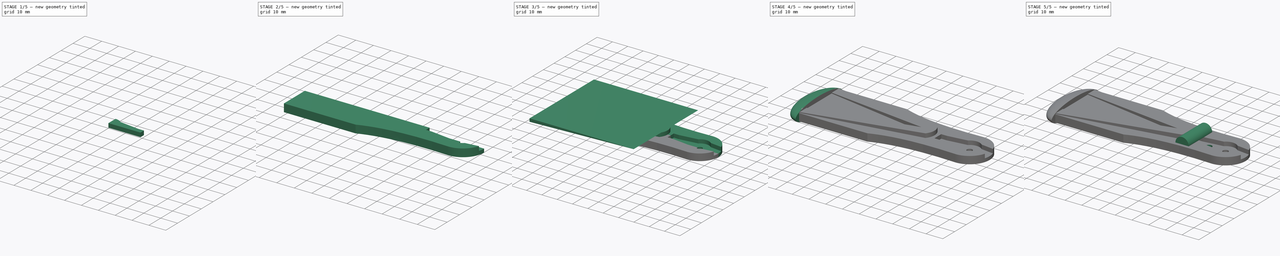
[diagram: build sequence overview — one tinted view per stage of 5, left to right]
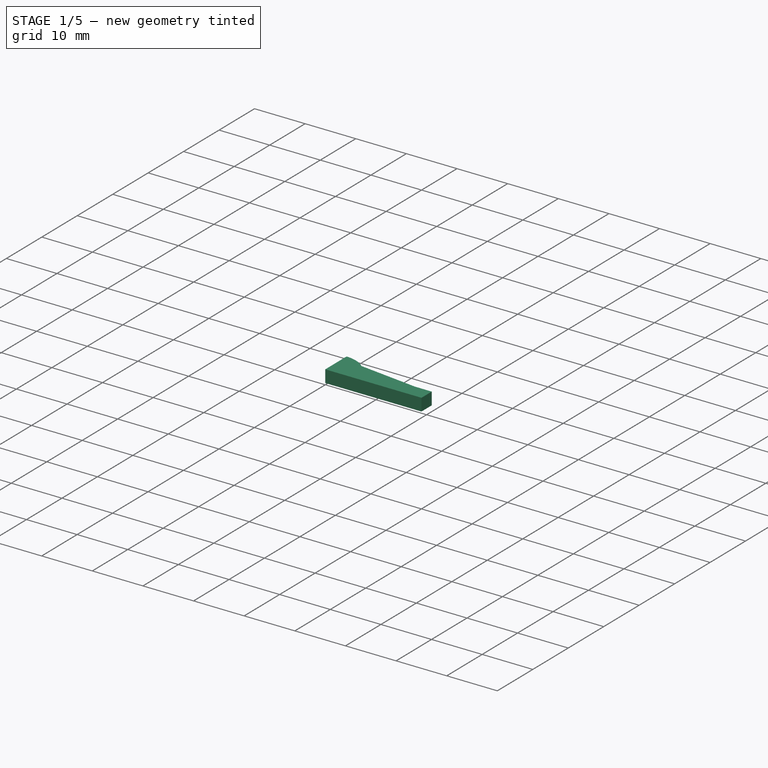
[diagram: stage 1 of 5 — iso view after this stage's code; geometry added in this stage tinted green]
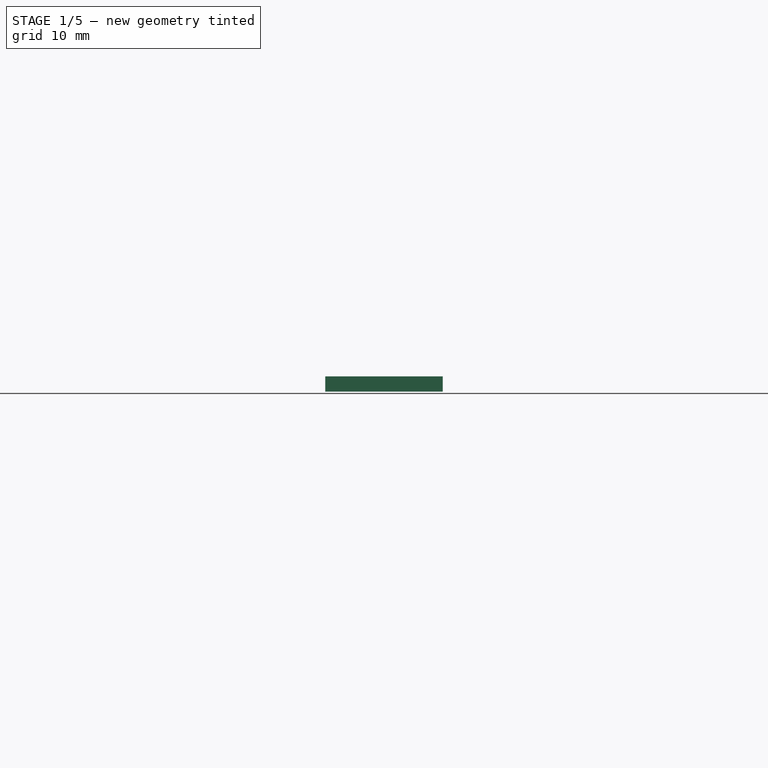
[diagram: stage 1 of 5 — front view after this stage's code; geometry added in this stage tinted green]
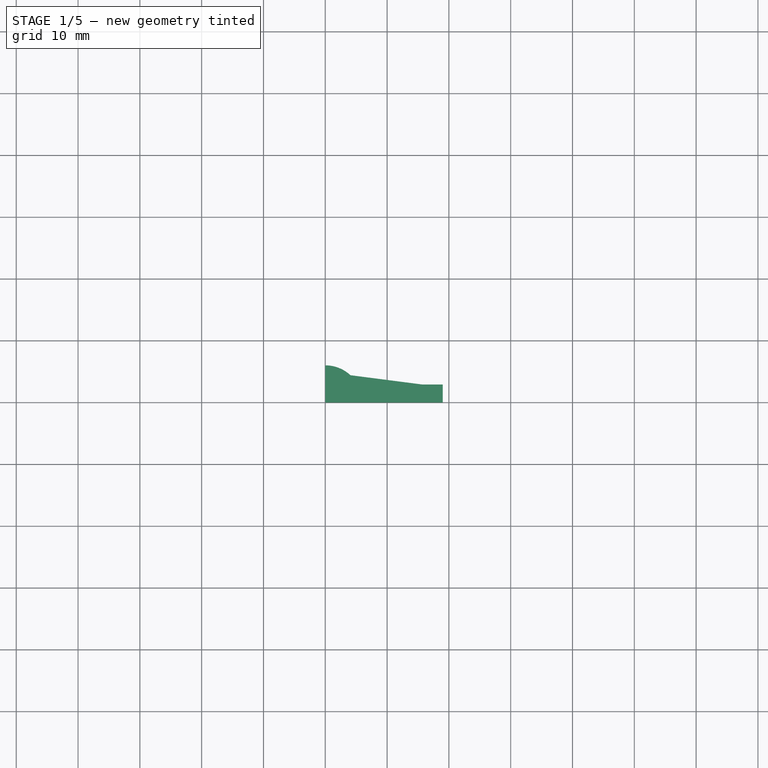
[diagram: stage 1 of 5 — top view after this stage's code; geometry added in this stage tinted green]
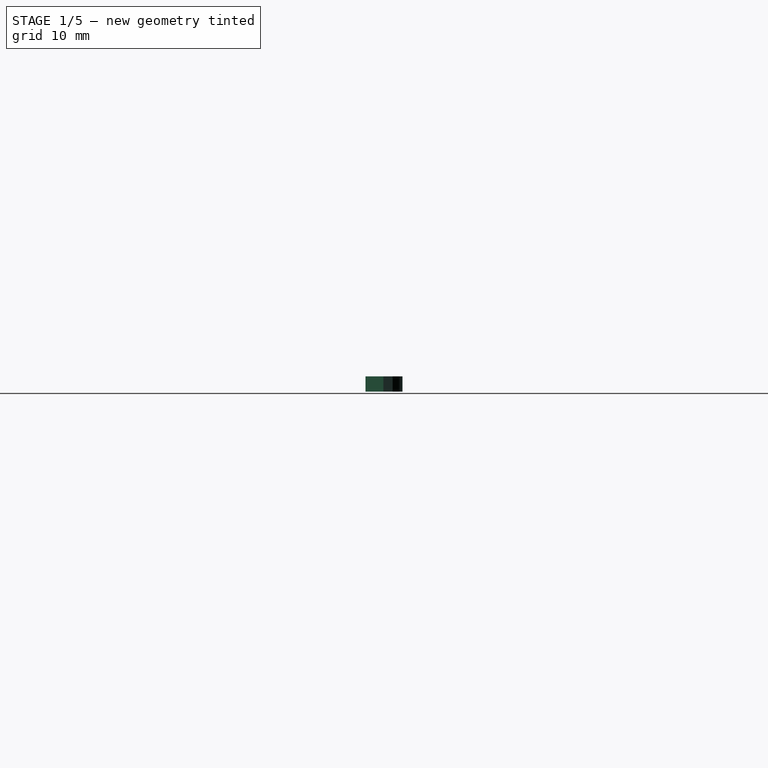
[diagram: stage 1 of 5 — right view after this stage's code; geometry added in this stage tinted green]
FCSTD DOCUMENT  (FreeCAD 0.18R16093 (Git))
Label: ServoHolder-3
License: All rights reserved
LicenseURL: http://en.wikipedia.org/wiki/All_rights_reserved
objects: Sketcher::SketchObject×6, TechDraw::DrawViewDimension×5, Part::Extrusion×4, Part::MultiFuse×3, TechDraw::DrawViewPart×3, Part::Mirroring×2, Part::Cut×2, Spreadsheet::Sheet×1, Part::Fuse×1, TechDraw::DrawSVGTemplate×1, TechDraw::DrawViewAnnotation×1, TechDraw::DrawPage×1, Part::Ellipsoid×1, PartDesign::FeatureBase×1, PartDesign::Pad×1, PartDesign::Pocket×1, PartDesign::Body×1
note: 25 computed .brp shape members not serialized (recipe doc carries the construction recipe); baked Part::Feature solids carry a one-line shape summary decoded from their .brp

FEATURE [Sketcher::SketchObject] Sketch001
  sketch-geometry (15):
    g0: GeomPoint X=-90 Y=17 Z=0
    g1: LineSegment StartX=-90 StartY=17 StartZ=0 EndX=-49.2057 EndY=17 EndZ=0
    g2: Circle [constr] CenterX=0 CenterY=12 CenterZ=0 NormalX=0 NormalY=0 NormalZ=1 AngleXU=0 Radius=6
    g3: Circle [constr] CenterX=-49.2057 CenterY=17 CenterZ=0 NormalX=0 NormalY=0 NormalZ=1 AngleXU=0 Radius=6
    g4: ArcOfCircle CenterX=0 CenterY=0 CenterZ=0 NormalX=0 NormalY=0 NormalZ=1 AngleXU=0 Radius=12 StartAngle=0 EndAngle=1.5708
    g5: ArcOfCircle CenterX=0 CenterY=0 CenterZ=0 NormalX=0 NormalY=0 NormalZ=1 AngleXU=0 Radius=1.6 StartAngle=0 EndAngle=3.14159
    g6: LineSegment StartX=1.6 StartY=0 StartZ=0 EndX=12 EndY=0 EndZ=0
    g7: LineSegment StartX=-1.6 StartY=0 StartZ=0 EndX=-90 EndY=0 EndZ=0
    g8: Circle [constr] CenterX=0 CenterY=12 CenterZ=0 NormalX=0 NormalY=0 NormalZ=1 AngleXU=0 Radius=5
    g9: Circle [constr] CenterX=-32.5091 CenterY=10.4213 CenterZ=0 NormalX=0 NormalY=0 NormalZ=1 AngleXU=0 Radius=5
    g10: Circle [constr] CenterX=-49.2057 CenterY=17 CenterZ=0 NormalX=0 NormalY=0 NormalZ=1 AngleXU=0 Radius=5
    g11: BSplineCurve PolesCount=3 KnotsCount=2 Degree=2 IsPeriodic=0
    g12: GeomPoint [constr] X=0 Y=12 Z=0
    g13: GeomPoint [constr] X=-49.2057 Y=17 Z=0
    g14: LineSegment StartX=-90 StartY=0 StartZ=0 EndX=-90 EndY=17 EndZ=0
  constraints (28):
    c: DistanceX(g0,g2) = 90  'length'
    c: DistanceY(g2,g0) = 5
    c: Coincident(g1,g0)
    c: Horizontal(g1)
    c: Radius(g2) = 6
    c: Equal(g2,g3)
    c: Coincident(g3,g1)
    c: PointOnObject(g4,g-1)
    c: PointOnObject(g7,g-1)
    c: Coincident(g5,g-1)
    c: PointOnObject(g5,g-1)
    c: Coincident(g6,g5)
    c: Coincident(g6,g4)
    c: Horizontal(g6)
    c: Coincident(g7,g5)
    c: Radius(g5) = 1.6
    c: Radius(g8) = 5
    c: Equal(g8,g9)
    c: Equal(g8,g10)
    c: Coincident(g10,g1)
    c: InternalAlignment(g8,g11)
    c: InternalAlignment(g9,g11)
    c: InternalAlignment(g10,g11)
    c: InternalAlignment(g12,g11)
    c: InternalAlignment(g13,g11)
    c: Coincident(g14,g0)
    c: Coincident(g14,g7)
    c: Coincident(g8,g2)
FEATURE [Part::Extrusion] Extrude  label="arm"
  Base = -> Sketch001
  Dir = (0,0,1)
  DirMode = 2
  FaceMakerClass = Part::FaceMakerBullseye
  LengthFwd = 4.5
  LengthRev = 0
  Solid = true
  Symmetric = false
  expr: LengthFwd = global.height
FEATURE [Sketcher::SketchObject] Sketch008  label="servoHolderHole"
  AttachmentOffset = pos=(0,0,0) rot=(0,0,1;1.5708rad)
  MapMode = 5
  Placement = pos=(0,0,4.5) rot=(0,0,1;1.5708rad)
  Support = -> [Extrude]
  sketch-geometry (7):
    g0: GeomPoint X=0 Y=19 Z=0
    g1: LineSegment StartX=0 StartY=19 StartZ=0 EndX=2.9 EndY=19 EndZ=0
    g2: LineSegment StartX=2.9 StartY=19 StartZ=0 EndX=2.9 EndY=15.6827 EndZ=0
    g3: ArcOfCircle CenterX=0 CenterY=0 CenterZ=0 NormalX=0 NormalY=0 NormalZ=1 AngleXU=0 Radius=6 StartAngle=0 EndAngle=0.747584
    g4: LineSegment StartX=4.4 StartY=4.07922 StartZ=0 EndX=2.9 EndY=15.6827 EndZ=0
    g5: LineSegment StartX=0 StartY=0 StartZ=0 EndX=6 EndY=0 EndZ=0
    g6: LineSegment StartX=0 StartY=0 StartZ=0 EndX=0 EndY=19 EndZ=0
  constraints (18):
    c: PointOnObject(g0,g-2)
    c: DistanceY(g-1,g0) = 19  'servHoleL'
    c: Coincident(g1,g0)
    c: Horizontal(g1)
    c: DistanceX(g1,g1) = 2.9
    c: Coincident(g2,g1)
    c: Vertical(g2)
    c: Coincident(g3,g-1)
    c: Radius(g3) = 6
    c: PointOnObject(g3,g-1)
    c: DistanceX(g-1,g3) = 4.4
    c: Coincident(g4,g2)
    c: Distance(g4) = 11.7
    c: Coincident(g4,g3)
    c: Coincident(g5,g-1)
    c: Coincident(g5,g3)
    c: Coincident(g6,g-1)
    c: Coincident(g6,g0)
FEATURE [Spreadsheet::Sheet] Spreadsheet  label="global"
  cells = A1=height; B1(height)=4.5; A2=offsetBackwardServo; B2(offestSev)=-2.5
FEATURE [Part::Extrusion] Extrude004
  Base = -> Sketch008
  Dir = (0,0,1)
  DirMode = 2
  FaceMakerClass = Part::FaceMakerBullseye
  LengthFwd = 2.45
  LengthRev = 0
  Reversed = true
  Solid = true
  Symmetric = false
FEATURE [Part::Mirroring] Part__Mirroring002  label="Extrude004 (Mirror #3)"
  Base = (0,0,0)
  Normal = (1,0,0)
  Source = -> Extrude004
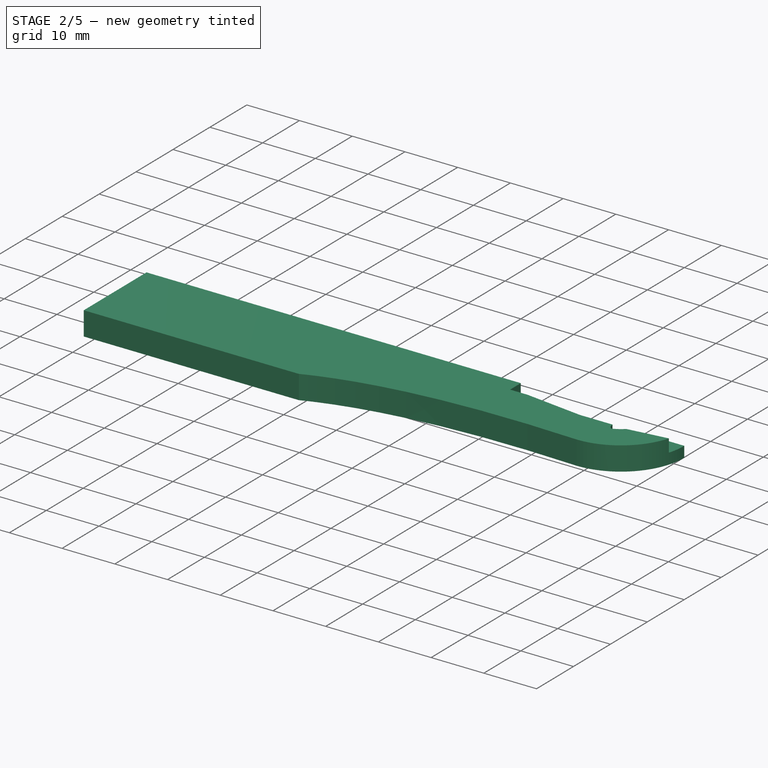
[diagram: stage 2 of 5 — iso view after this stage's code; geometry added in this stage tinted green]
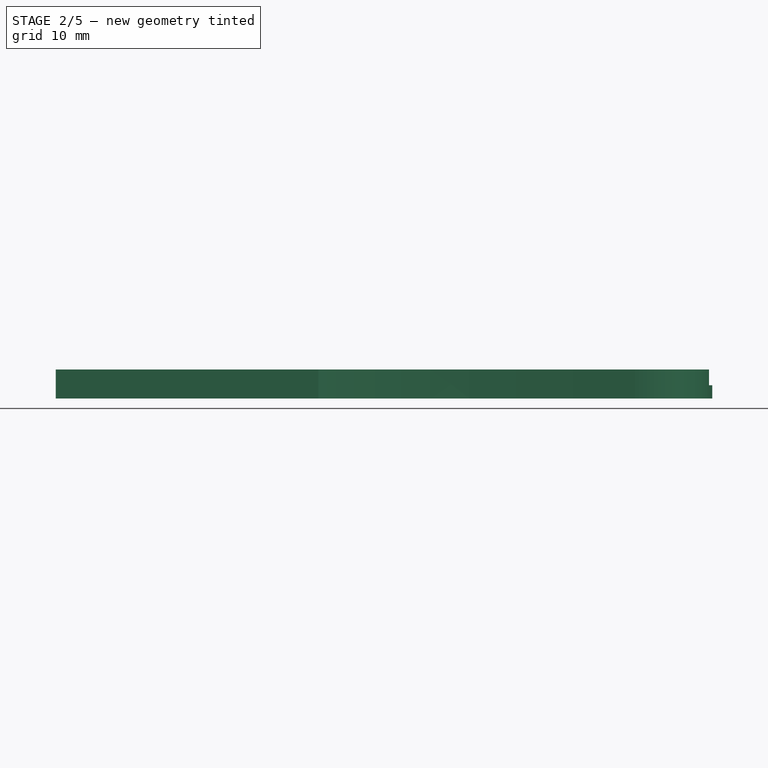
[diagram: stage 2 of 5 — front view after this stage's code; geometry added in this stage tinted green]
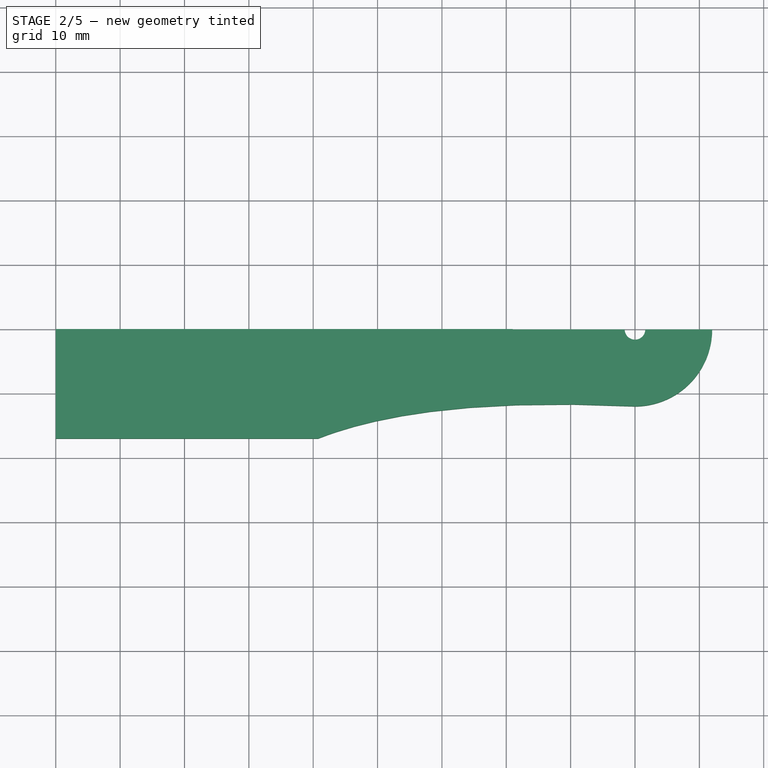
[diagram: stage 2 of 5 — top view after this stage's code; geometry added in this stage tinted green]
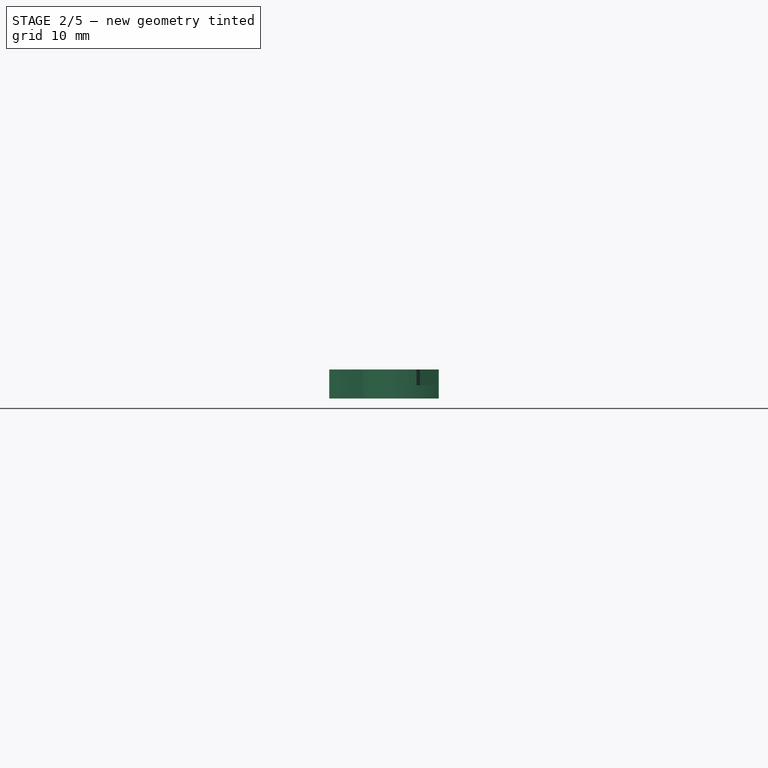
[diagram: stage 2 of 5 — right view after this stage's code; geometry added in this stage tinted green]
FEATURE [Part::MultiFuse] Fusion003
  Shapes = -> [Part__Mirroring002,Extrude004]
FEATURE [Part::Cut] Cut
  Base = -> Extrude
  Tool = -> Fusion003
FEATURE [Part::Mirroring] Part__Mirroring  label="Extrude (Mirror #1)"
  Base = (0,0,0)
  Normal = (0,1,0)
  Source = -> Cut
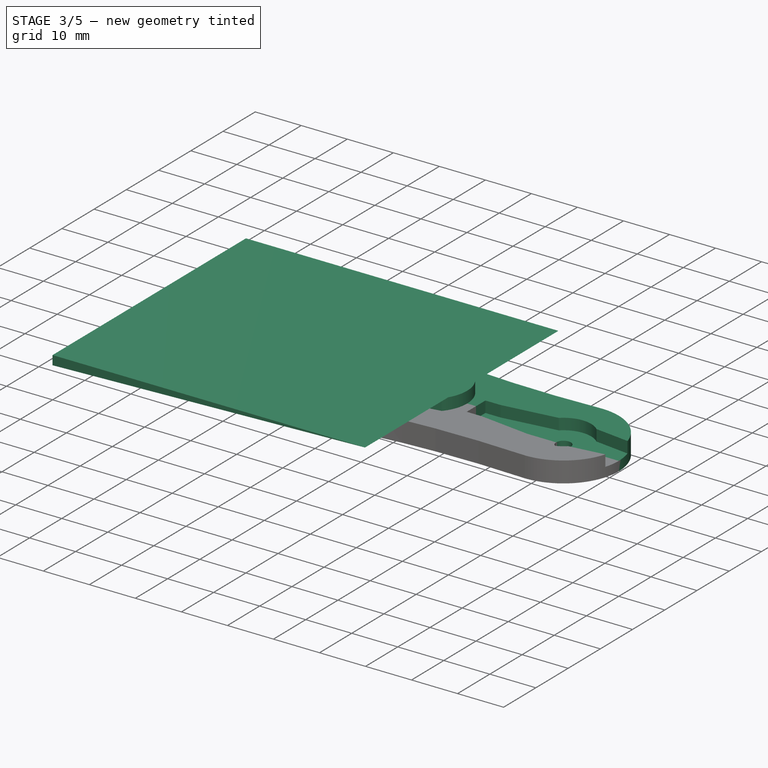
[diagram: stage 3 of 5 — iso view after this stage's code; geometry added in this stage tinted green]
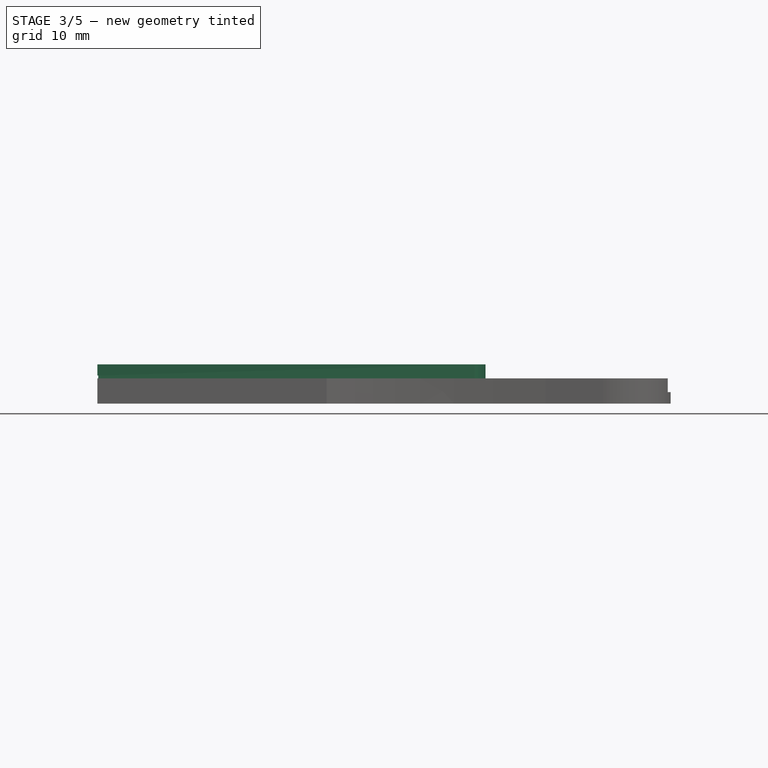
[diagram: stage 3 of 5 — front view after this stage's code; geometry added in this stage tinted green]
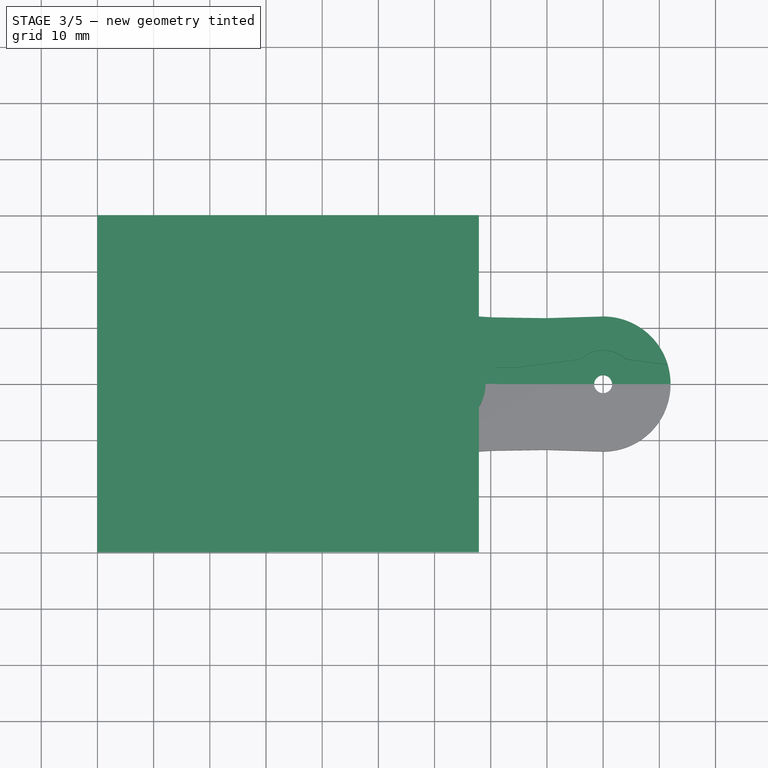
[diagram: stage 3 of 5 — top view after this stage's code; geometry added in this stage tinted green]
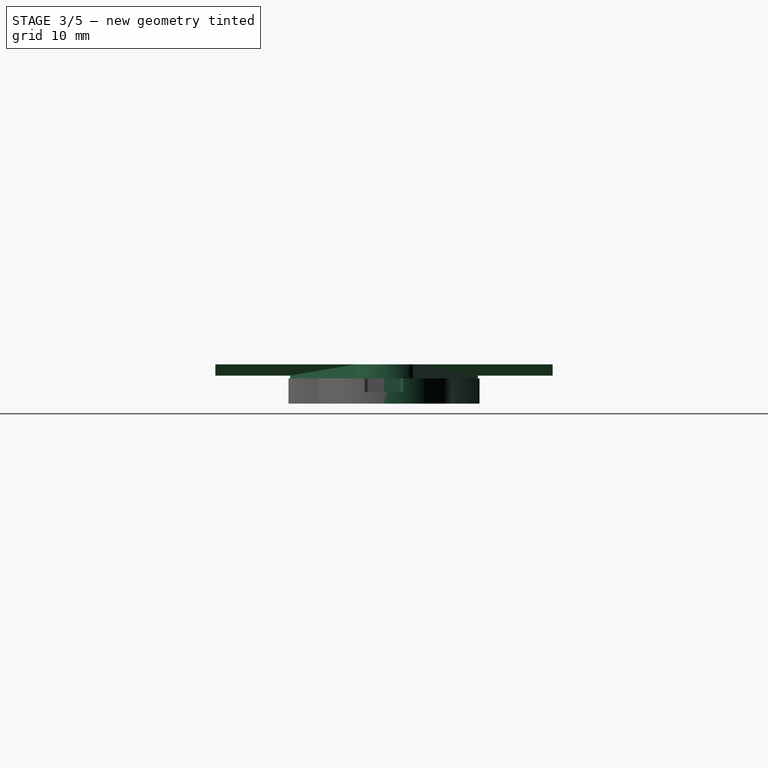
[diagram: stage 3 of 5 — right view after this stage's code; geometry added in this stage tinted green]
FEATURE [Sketcher::SketchObject] Sketch012
  MapMode = 5
  Placement = pos=(0,0,4) rot=(0,0,1;0rad)
  sketch-geometry (9):
    g0: LineSegment StartX=-89.8501 StartY=16.7026 StartZ=0 EndX=-22.8408 EndY=5.14242 EndZ=0
    g1: LineSegment StartX=-22.8408 StartY=-5.14242 StartZ=0 EndX=-89.8501 EndY=-16.7026 EndZ=0
    g2: LineSegment StartX=-89.8501 StartY=-16.7026 StartZ=0 EndX=-89.8501 EndY=-10.7026 EndZ=0
    g3: LineSegment StartX=-89.8501 StartY=-10.7026 StartZ=0 EndX=-28.8408 EndY=0 EndZ=0
    g4: LineSegment StartX=-28.8408 StartY=0 StartZ=0 EndX=-89.8501 EndY=10.7026 EndZ=0
    g5: LineSegment StartX=-89.8501 StartY=10.7026 StartZ=0 EndX=-89.8501 EndY=16.7026 EndZ=0
    g6: ArcOfCircle CenterX=-28.8408 CenterY=0 CenterZ=0 NormalX=0 NormalY=0 NormalZ=1 AngleXU=0 Radius=7.90218 StartAngle=5.5746 EndAngle=6.99177
    g7: LineSegment [constr] StartX=-89.8501 StartY=10.7026 StartZ=0 EndX=-89.8501 EndY=0 EndZ=0
    g8: LineSegment [constr] StartX=-89.8501 StartY=0 StartZ=0 EndX=-89.8501 EndY=-10.7026 EndZ=0
  constraints (22):
    c: Coincident(g2,g1)
    c: Vertical(g2)
    c: Coincident(g3,g2)
    c: PointOnObject(g3,g-1)
    c: Coincident(g4,g3)
    c: Coincident(g5,g4)
    c: Coincident(g5,g0)
    c: Vertical(g5)
    c: DistanceY(g2,g2) = 6
    c: DistanceY(g5,g5) = 6
    c: Coincident(g6,g3)
    c: Coincident(g6,g0)
    c: Coincident(g6,g1)
    c: DistanceX(g3,g0) = 6
    c: DistanceX(g3,g1) = 6
    c: Coincident(g7,g4)
    c: PointOnObject(g7,g-1)
    c: Coincident(g8,g7)
    c: Coincident(g8,g2)
    c: Vertical(g7)
    c: Vertical(g8)
    c: Equal(g7,g8)
FEATURE [Sketcher::SketchObject] Sketch013
  MapMode = 5
  Placement = pos=(0,0,0) rot=(1,0,0;1.5708rad)
  sketch-geometry (3):
    g0: LineSegment StartX=-90 StartY=5 StartZ=0 EndX=-22.1184 EndY=7 EndZ=0
    g1: LineSegment StartX=-22.1184 StartY=7 StartZ=0 EndX=-90 EndY=7 EndZ=0
    g2: LineSegment StartX=-90 StartY=7 StartZ=0 EndX=-90 EndY=5 EndZ=0
  constraints (8):
    c: Coincident(g1,g0)
    c: Horizontal(g1)
    c: Coincident(g2,g1)
    c: Coincident(g2,g0)
    c: Vertical(g2)
    c: DistanceX(g0,g-1) = 90
    c: DistanceY(g-1,g0) = 7
    c: DistanceY(g0,g1) = 2
FEATURE [Part::Extrusion] Extrude005
  Base = -> Sketch012
  Dir = (0,0,1)
  DirMode = 2
  FaceMakerClass = Part::FaceMakerBullseye
  LengthFwd = 3
  LengthRev = 0
  Solid = true
  Symmetric = false
FEATURE [Part::Extrusion] Extrude006
  Base = -> Sketch013
  Dir = (0,-1,0)
  DirMode = 2
  FaceMakerClass = Part::FaceMakerBullseye
  LengthFwd = 30
  LengthRev = 30
  Solid = true
  Symmetric = false
FEATURE [Part::Fuse] Fusion
  Base = -> Cut
  Tool = -> Part__Mirroring
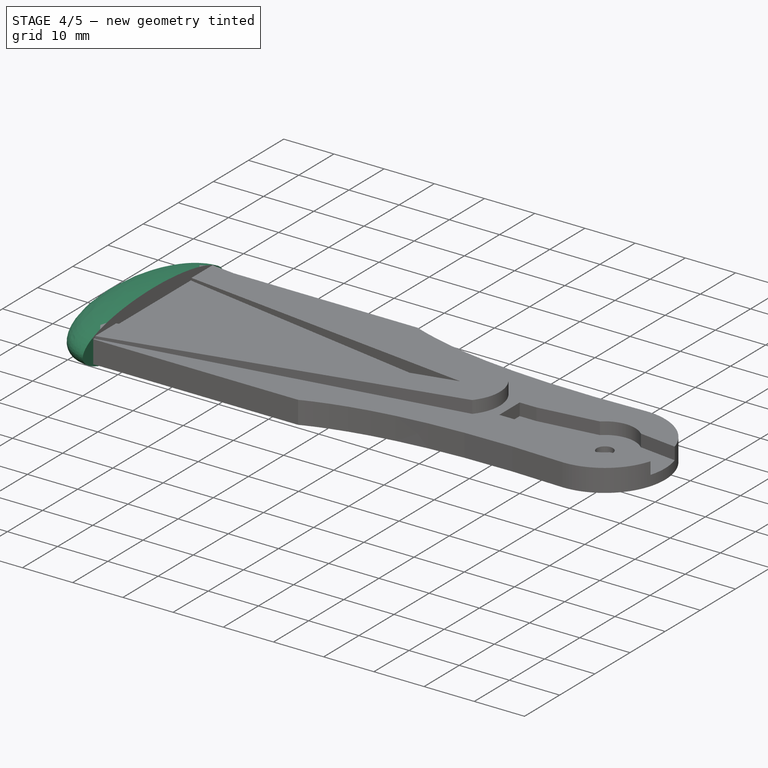
[diagram: stage 4 of 5 — iso view after this stage's code; geometry added in this stage tinted green]
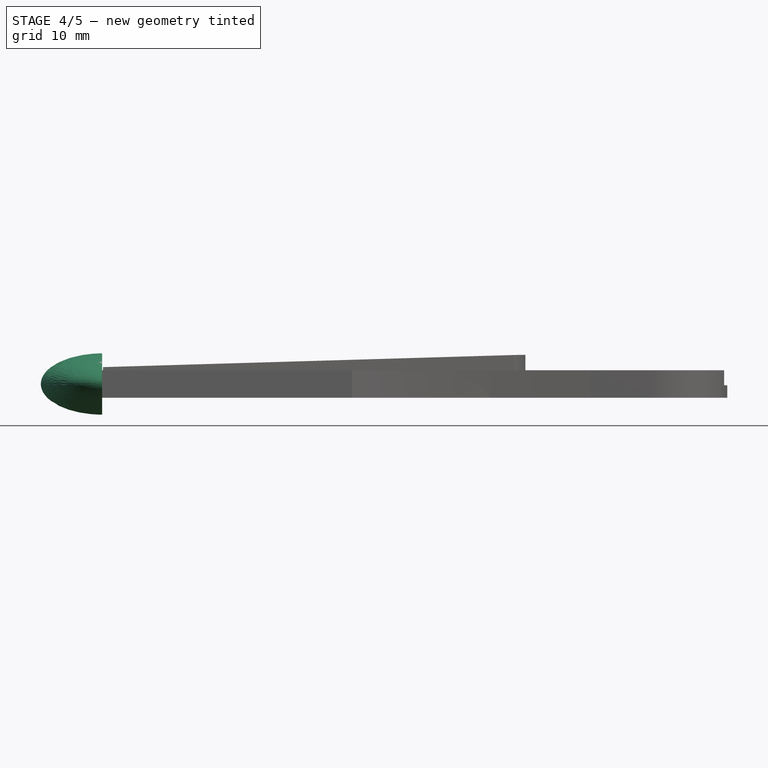
[diagram: stage 4 of 5 — front view after this stage's code; geometry added in this stage tinted green]
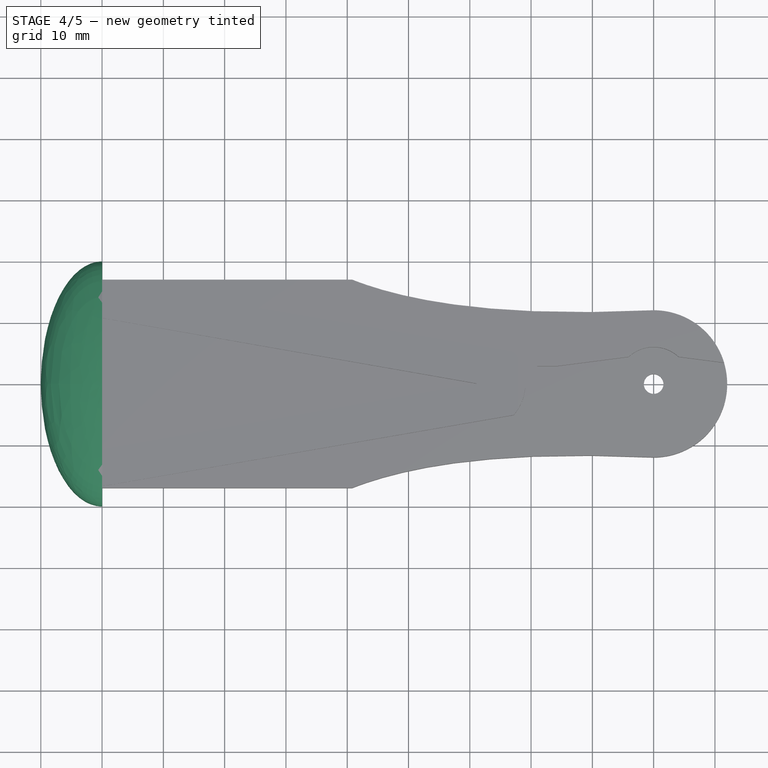
[diagram: stage 4 of 5 — top view after this stage's code; geometry added in this stage tinted green]
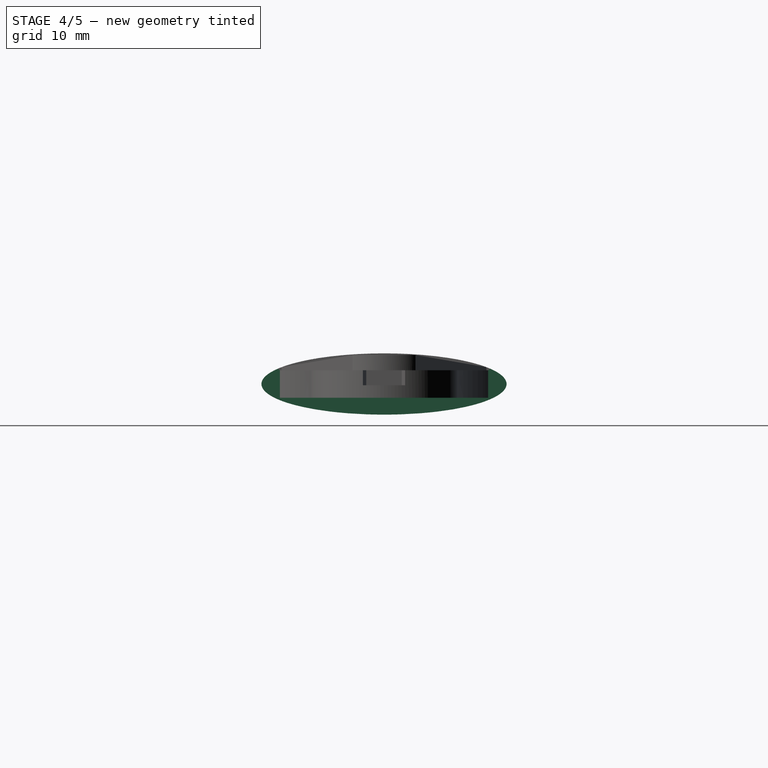
[diagram: stage 4 of 5 — right view after this stage's code; geometry added in this stage tinted green]
FEATURE [Part::Cut] Cut001  label="Strebe"
  Base = -> Extrude005
  Tool = -> Extrude006
FEATURE [TechDraw::DrawSVGTemplate] Template
  EditableTexts = Designed_by_Name=Johannes Löwe; Drawing_number=0.0.1; FC-Date=24/03/2019; FC-SC=-; FC-SH=1; FC-Title=S.L.A.R Leg; Subtitle=Middle Component; Weight=19.5 g
  Height = 210
  Orientation = 1
  Width = 297
FEATURE [TechDraw::DrawViewPart] View  label="Top"
  Caption = Top
  CoarseView = true
  Direction = (0,0,1)
  Focus = 100
  HardHidden = false
  IsoCount = 0
  IsoHidden = false
  IsoVisible = true
  LockPosition = false
  Perspective = false
  Rotation = 0
  ScaleType = 1
  SeamHidden = false
  SeamVisible = false
  SmoothHidden = false
  SmoothVisible = true
  X = 133.52
  Y = 56.71
FEATURE [TechDraw::DrawViewPart] View001  label="Front"
  Caption = Front
  CoarseView = true
  Direction = (0,1,0)
  Focus = 100
  HardHidden = false
  IsoCount = 0
  IsoHidden = false
  IsoVisible = false
  LockPosition = false
  Perspective = true
  Rotation = 0
  ScaleType = 0
  SeamHidden = false
  SeamVisible = false
  SmoothHidden = false
  SmoothVisible = false
  X = 216.314
  Y = 87.8478
FEATURE [TechDraw::DrawViewPart] View002  label="Perspective"
  Caption = The S.L.A.R. Leg
  CoarseView = true
  Direction = (-0.2,1,1)
  Focus = 200
  HardHidden = false
  IsoCount = 0
  IsoHidden = false
  IsoVisible = true
  LockPosition = false
  Perspective = false
  Rotation = 0
  Scale = 1.5
  ScaleType = 0
  SeamHidden = false
  SeamVisible = false
  SmoothHidden = true
  SmoothVisible = false
  X = 69.0301
  Y = 169.689
  expr: Direction.x = -0.2
FEATURE [TechDraw::DrawViewDimension] Dimension
  Arbitrary = false
  FormatSpec = %.2f
  LockPosition = false
  MeasureType = 1
  OverTolerance = 0
  References2D = -> [View]
  Rotation = 0
  ScaleType = 0
  Type = 2
  UnderTolerance = 0
  X = -113.183
  Y = -28.0041
FEATURE [TechDraw::DrawViewDimension] Dimension001
  Arbitrary = false
  FormatSpec = %.2f
  LockPosition = false
  MeasureType = 1
  OverTolerance = 0
  References2D = -> [View001]
  Rotation = 0
  ScaleType = 0
  Type = 1
  UnderTolerance = 0
  X = 31.1719
  Y = 20.5356
FEATURE [TechDraw::DrawViewDimension] Dimension002
  Arbitrary = false
  FormatSpec = %.2f
  LockPosition = false
  MeasureType = 1
  OverTolerance = 0
  References2D = -> [View]
  Rotation = 0
  ScaleType = 0
  Type = 2
  UnderTolerance = 0
  X = -69.0862
  Y = -0.822454
FEATURE [TechDraw::DrawViewDimension] Dimension003
  Arbitrary = false
  FormatSpec = %.2f
  LockPosition = false
  MeasureType = 1
  OverTolerance = 0
  References2D = -> [View]
  Rotation = 0
  ScaleType = 0
  Type = 2
  UnderTolerance = 0
  X = -91.294
  Y = -1.64851
FEATURE [TechDraw::DrawViewDimension] Dimension004
  Arbitrary = false
  FormatSpec = %.2f
  LockPosition = false
  MeasureType = 1
  OverTolerance = 0
  References2D = -> [View002]
  Rotation = 0
  ScaleType = 0
  Type = 0
  UnderTolerance = 0
  X = 1.50159
  Y = -39.0413
FEATURE [TechDraw::DrawViewAnnotation] Annotation
  Font = osifont
  LineSpace = 80
  LockPosition = false
  MaxWidth = -1
  Rotation = 0
  ScaleType = 0
  Text = Radboud University
  TextSize = 5
  TextStyle = 2
  X = 214.014
  Y = 35.8125
FEATURE [TechDraw::DrawPage] Page
  KeepUpdated = true
  ProjectionType = 0
  Template = -> Template
  Views = -> [View,View001,View002,Dimension,Dimension001,Dimension002,Dimension003,Dimension004,Annotation]
FEATURE [Part::MultiFuse] Fusion004
  Shapes = -> [Cut001,Fusion]
FEATURE [Sketcher::SketchObject] Sketch015  label="HoleServoScrew2"
  MapMode = 5
  Placement = pos=(0,0,4) rot=(0,0,1;0rad)
  sketch-geometry (1):
    g0: Circle CenterX=-10 CenterY=0 CenterZ=0 NormalX=0 NormalY=0 NormalZ=1 AngleXU=0 Radius=1.8
  constraints (3):
    c: PointOnObject(g0,g-1)
    c: DistanceX(g0,g-1) = 10
    c: Radius(g0) = 1.8
FEATURE [Part::Ellipsoid] Ellipsoid
  Angle1 = -90
  Angle2 = 90
  Angle3 = 180
  AttacherType = Attacher::AttachEngine3D
  Placement = pos=(-90,0,2.25) rot=(0,0,1;1.5708rad)
  Radius1 = 5
  Radius2 = 20
  Radius3 = 10
  expr: Placement.Base.z = global.height / 2
  expr: Placement.Base.x = -1 * Sketch001.Constraints.length
FEATURE [Part::MultiFuse] Fusion005
  Shapes = -> [Ellipsoid,Fusion004]
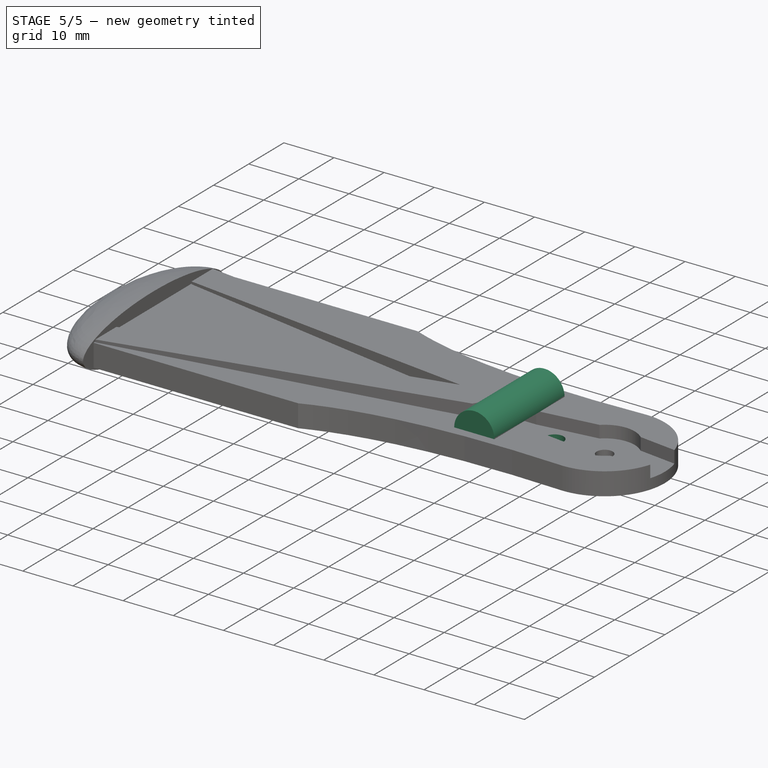
[diagram: stage 5 of 5 — iso view after this stage's code; geometry added in this stage tinted green]
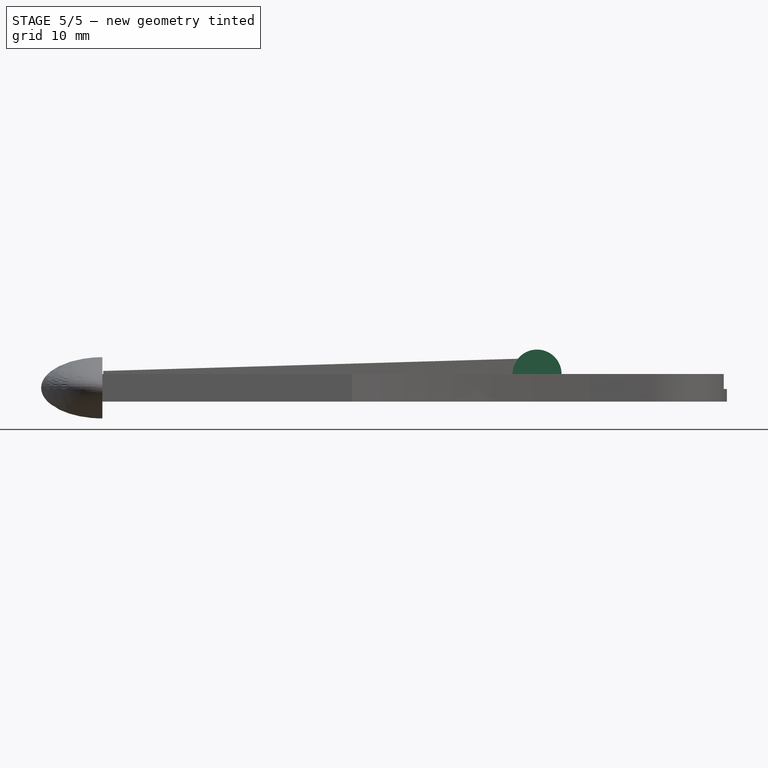
[diagram: stage 5 of 5 — front view after this stage's code; geometry added in this stage tinted green]
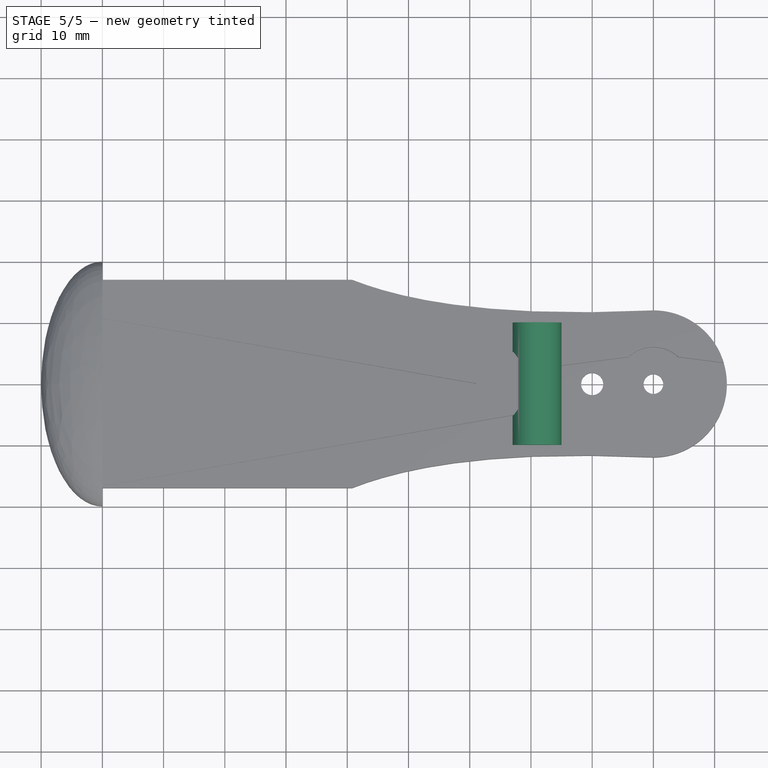
[diagram: stage 5 of 5 — top view after this stage's code; geometry added in this stage tinted green]
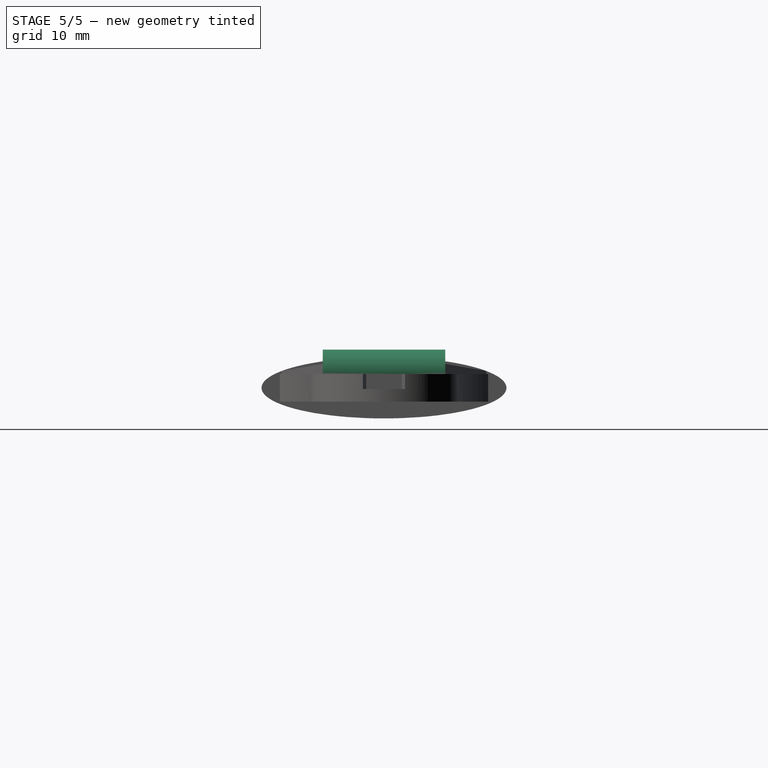
[diagram: stage 5 of 5 — right view after this stage's code; geometry added in this stage tinted green]
FEATURE [PartDesign::FeatureBase] BaseFeature
  BaseFeature = -> Fusion005
FEATURE [Sketcher::SketchObject] Sketch  label="shoe"
  Placement = pos=(0,0,0) rot=(1,0,0;1.5708rad)
  expr: Constraints[4] = arm.LengthFwd
  expr: Constraints[6] = servoHolderHole.Constraints.servHoleL
  sketch-geometry (2):
    g0: ArcOfCircle CenterX=-19 CenterY=4.5 CenterZ=0 NormalX=0 NormalY=0 NormalZ=1 AngleXU=0 Radius=4 StartAngle=0 EndAngle=3.14159
    g1: LineSegment StartX=-23 StartY=4.5 StartZ=0 EndX=-15 EndY=4.5 EndZ=0
  constraints (7):
    c: Radius(g0) = 4
    c: Coincident(g1,g0)
    c: Coincident(g1,g0)
    c: Horizontal(g1)
    c: DistanceY(g-1,g0) = 4.5
    c: PointOnObject(g0,g1)
    c: DistanceX(g0,g-1) = 19
FEATURE [PartDesign::Pad] Pad
  BaseFeature = -> BaseFeature
  Length = 10
  Length2 = 10
  Profile = -> Sketch
  Reversed = true
  Type = 4
FEATURE [PartDesign::Pocket] Pocket
  BaseFeature = -> Pad
  Length = 28
  Length2 = 100
  Midplane = true
  Profile = -> Sketch015
  Type = 0
FEATURE [PartDesign::Body] Body
  BaseFeature = -> Fusion005
  Group = -> [BaseFeature,Sketch015,Sketch,Pad,Pocket]
  Origin = -> Origin
  Tip = -> Pocket
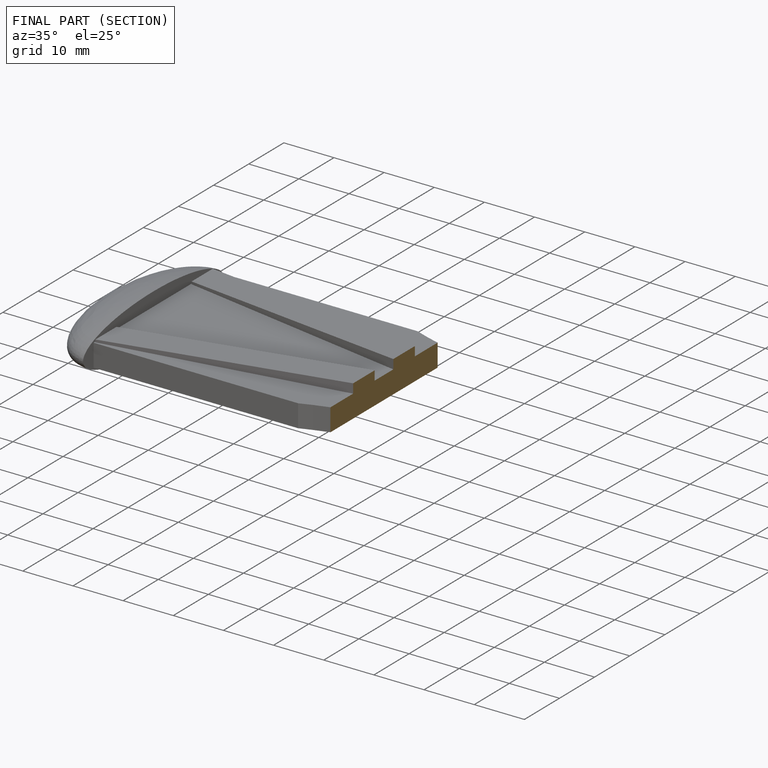
[diagram: finished part — half-section view (interior)]
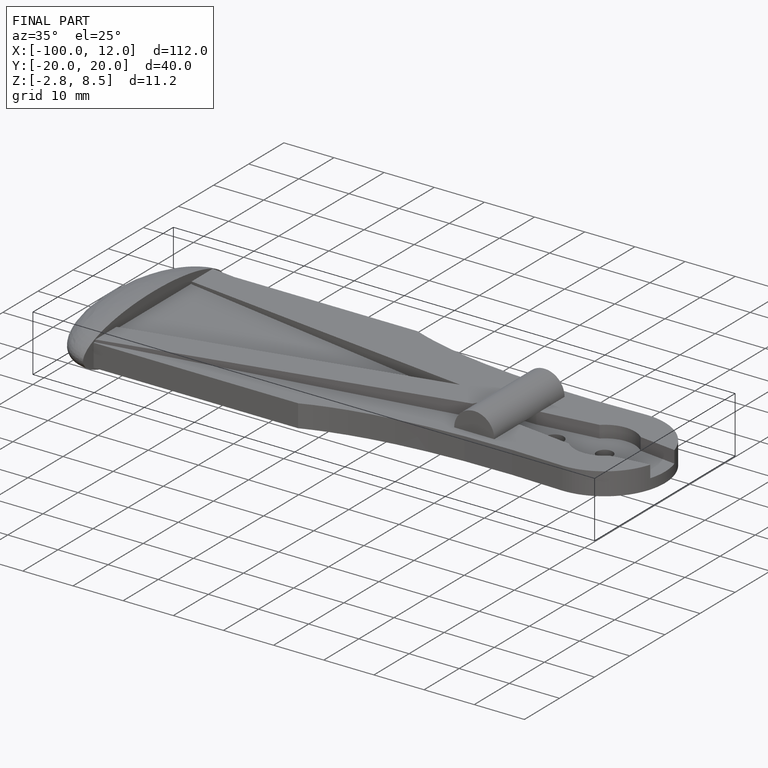
[diagram: finished part — iso view with bounding-box wireframe]
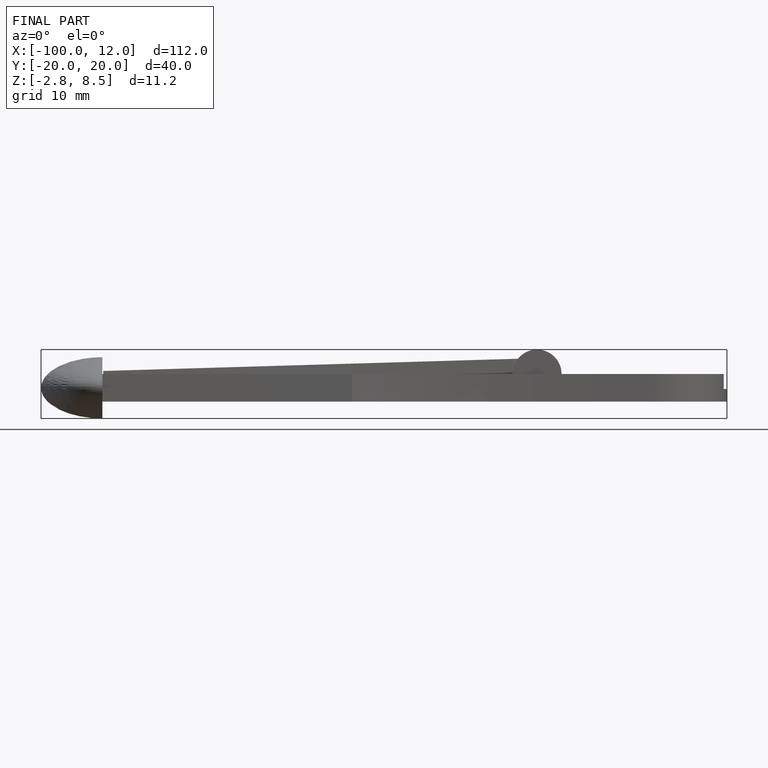
[diagram: finished part — front view with bounding-box wireframe]
